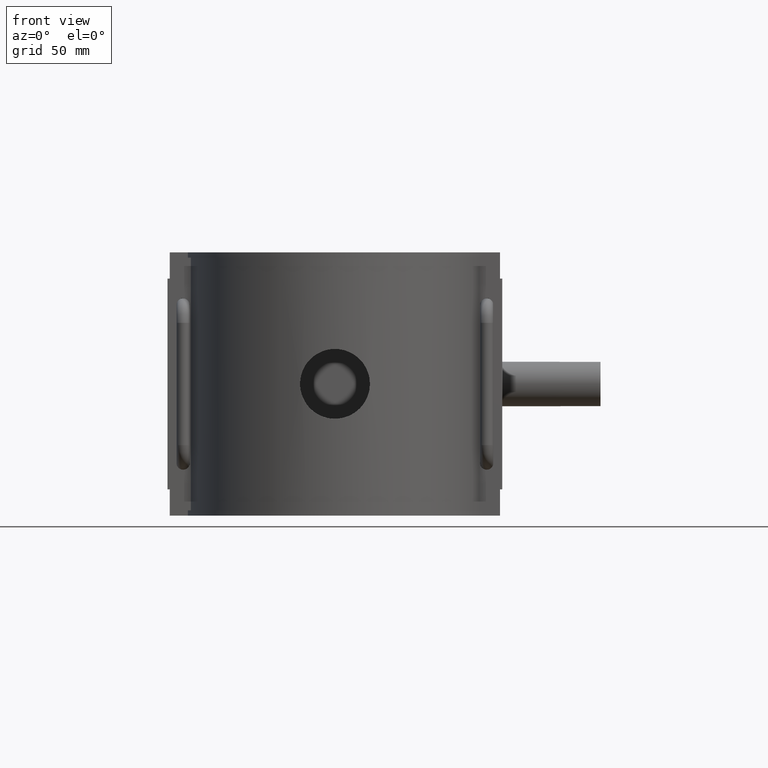
[diagram: clean part render]
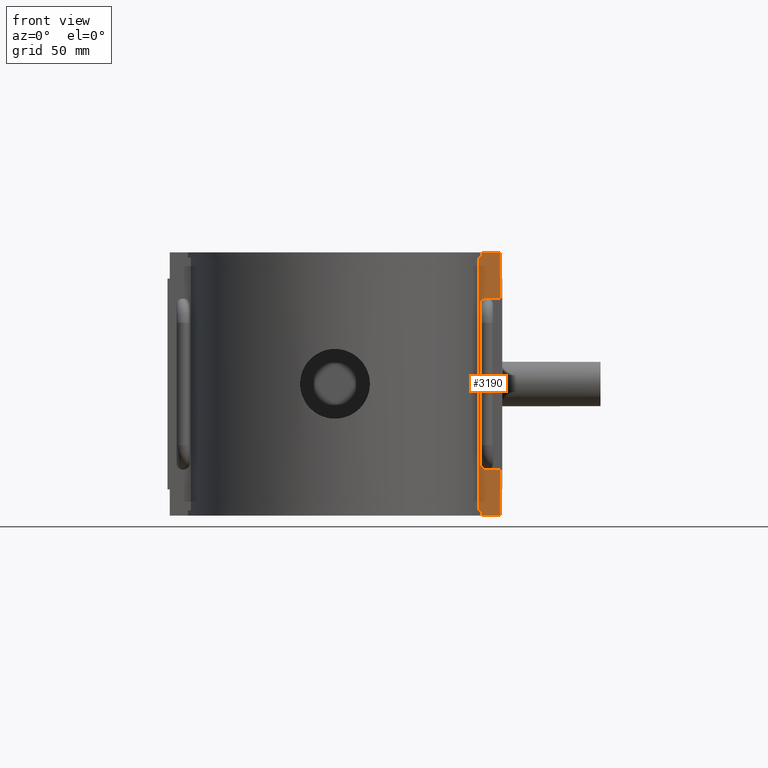
[diagram: same view with one face highlighted and labeled with its STEP entity id]
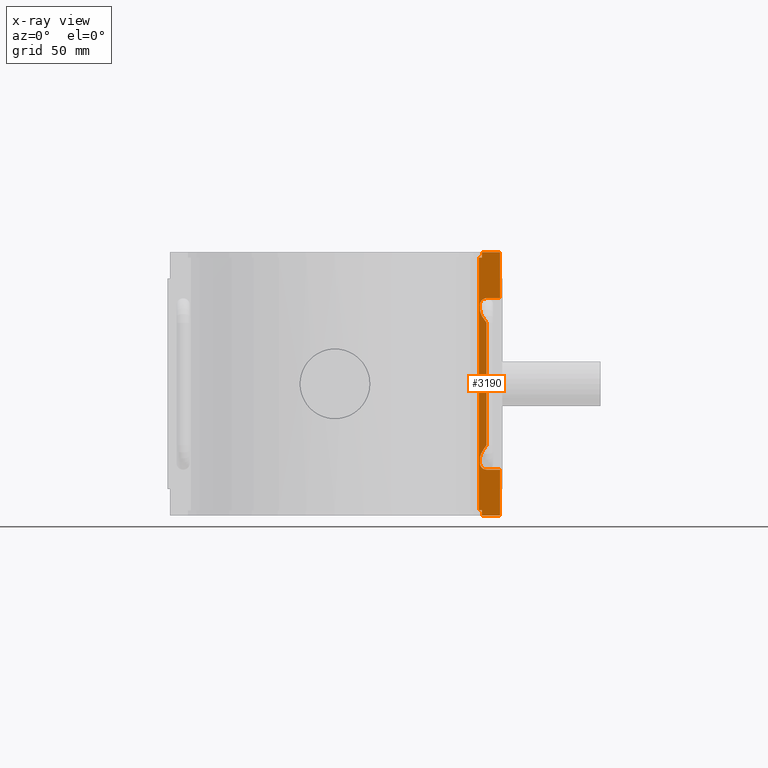
[diagram: x-ray of the same camera — body ghosted, the highlighted face saturated]
A machine part, front view. The second image highlights one B-rep face of the part: STEP entity #3190.
The next image is the same camera in x-ray: the body ghosted, the highlighted face saturated — about 0% of this face is hidden behind the body in this view.
In plain terms, the highlighted planar face has unit normal (0, -1, 0).
Its self-contained STEP definition (entity closure, byte-faithful):
#107=LINE('',#5409,#394);
#110=LINE('',#5417,#397);
#129=LINE('',#5497,#416);
#130=LINE('',#5501,#417);
#143=LINE('',#5662,#430);
#144=LINE('',#5664,#431);
#145=LINE('',#5666,#432);
#146=LINE('',#5683,#433);
#147=LINE('',#5700,#434);
#148=LINE('',#5702,#435);
#149=LINE('',#5703,#436);
#150=LINE('',#5704,#437);
#394=VECTOR('',#3880,2.36);
#397=VECTOR('',#3887,1.34901356519471);
#416=VECTOR('',#3932,2.36);
#417=VECTOR('',#3937,1.34901356519471);
#430=VECTOR('',#3964,8.09916616612502);
#431=VECTOR('',#3965,20.6);
#432=VECTOR('',#3966,6.02433467297777);
#433=VECTOR('',#3969,54.8);
#434=VECTOR('',#3972,6.02433467297777);
#435=VECTOR('',#3973,20.6);
#436=VECTOR('',#3974,8.09916616612502);
#437=VECTOR('',#3975,113.28);
#649=PLANE('',#3437);
#788=CIRCLE('',#3438,3.);
#789=CIRCLE('',#3439,3.);
#962=FACE_OUTER_BOUND('',#1166,.T.);
#1166=EDGE_LOOP('',(#2469,#2470,#2471,#2472,#2473,#2474,#2475,#2476,#2477,
#2478,#2479,#2480,#2481,#2482,#2483,#2484));
#1351=B_SPLINE_CURVE_WITH_KNOTS('',3,(#5670,#5671,#5672,#5673,#5674,#5675,
#5676,#5677,#5678,#5679,#5680,#5681),.UNSPECIFIED.,.F.,.F.,(4,2,2,2,2,4),
(1.5541826746921,1.64143836729109,1.76844964601288,1.89546092473467,2.1009420105833,
2.30642309643193),.UNSPECIFIED.);
#1352=B_SPLINE_CURVE_WITH_KNOTS('',3,(#5685,#5686,#5687,#5688,#5689,#5690,
#5691,#5692,#5693,#5694,#5695,#5696),.UNSPECIFIED.,.F.,.F.,(4,2,2,2,2,4),
(0.,0.205481085848629,0.410962171697258,0.537973450419048,0.664984729140837,
0.752240421739826),.UNSPECIFIED.);
#1469=VERTEX_POINT('',#5406);
#1470=VERTEX_POINT('',#5408);
#1473=VERTEX_POINT('',#5416);
#1496=VERTEX_POINT('',#5493);
#1497=VERTEX_POINT('',#5495);
#1498=VERTEX_POINT('',#5499);
#1518=VERTEX_POINT('',#5661);
#1519=VERTEX_POINT('',#5663);
#1520=VERTEX_POINT('',#5665);
#1521=VERTEX_POINT('',#5667);
#1522=VERTEX_POINT('',#5669);
#1523=VERTEX_POINT('',#5682);
#1524=VERTEX_POINT('',#5684);
#1525=VERTEX_POINT('',#5697);
#1526=VERTEX_POINT('',#5699);
#1527=VERTEX_POINT('',#5701);
#1819=EDGE_CURVE('',#1470,#1469,#107,.T.);
#1823=EDGE_CURVE('',#1473,#1470,#110,.T.);
#1852=EDGE_CURVE('',#1496,#1497,#129,.T.);
#1854=EDGE_CURVE('',#1497,#1498,#130,.T.);
#1877=EDGE_CURVE('',#1518,#1469,#143,.T.);
#1878=EDGE_CURVE('',#1518,#1519,#144,.T.);
#1879=EDGE_CURVE('',#1519,#1520,#145,.T.);
#1880=EDGE_CURVE('',#1520,#1521,#788,.T.);
#1881=EDGE_CURVE('',#1521,#1522,#1351,.T.);
#1882=EDGE_CURVE('',#1523,#1522,#146,.T.);
#1883=EDGE_CURVE('',#1523,#1524,#1352,.T.);
#1884=EDGE_CURVE('',#1524,#1525,#789,.T.);
#1885=EDGE_CURVE('',#1525,#1526,#147,.T.);
#1886=EDGE_CURVE('',#1526,#1527,#148,.T.);
#1887=EDGE_CURVE('',#1496,#1527,#149,.T.);
#1888=EDGE_CURVE('',#1473,#1498,#150,.T.);
#2469=ORIENTED_EDGE('',*,*,#1819,.T.);
#2470=ORIENTED_EDGE('',*,*,#1877,.F.);
#2471=ORIENTED_EDGE('',*,*,#1878,.T.);
#2472=ORIENTED_EDGE('',*,*,#1879,.T.);
#2473=ORIENTED_EDGE('',*,*,#1880,.T.);
#2474=ORIENTED_EDGE('',*,*,#1881,.T.);
#2475=ORIENTED_EDGE('',*,*,#1882,.F.);
#2476=ORIENTED_EDGE('',*,*,#1883,.T.);
#2477=ORIENTED_EDGE('',*,*,#1884,.T.);
#2478=ORIENTED_EDGE('',*,*,#1885,.T.);
#2479=ORIENTED_EDGE('',*,*,#1886,.T.);
#2480=ORIENTED_EDGE('',*,*,#1887,.F.);
#2481=ORIENTED_EDGE('',*,*,#1852,.T.);
#2482=ORIENTED_EDGE('',*,*,#1854,.T.);
#2483=ORIENTED_EDGE('',*,*,#1888,.F.);
#2484=ORIENTED_EDGE('',*,*,#1823,.T.);
#3190=ADVANCED_FACE('',(#962),#649,.T.);
#3437=AXIS2_PLACEMENT_3D('',#5660,#3962,#3963);
#3438=AXIS2_PLACEMENT_3D('',#5668,#3967,#3968);
#3439=AXIS2_PLACEMENT_3D('',#5698,#3970,#3971);
#3880=DIRECTION('',(0.,0.,-1.));
#3887=DIRECTION('',(1.,0.,0.));
#3932=DIRECTION('',(0.,0.,-1.));
#3937=DIRECTION('',(-1.,0.,0.));
#3962=DIRECTION('center_axis',(0.,-1.,0.));
#3963=DIRECTION('ref_axis',(1.,0.,0.));
#3964=DIRECTION('',(-1.,0.,0.));
#3965=DIRECTION('',(0.,0.,1.));
#3966=DIRECTION('',(-1.,0.,0.));
#3967=DIRECTION('center_axis',(0.,1.,0.));
#3968=DIRECTION('ref_axis',(1.,0.,0.));
#3969=DIRECTION('',(0.,1.62076353959877E-16,-1.));
#3970=DIRECTION('center_axis',(0.,1.,0.));
#3971=DIRECTION('ref_axis',(1.,0.,0.));
#3972=DIRECTION('',(1.,0.,7.37158929503087E-16));
#3973=DIRECTION('',(0.,0.,1.));
#3974=DIRECTION('',(1.,0.,0.));
#3975=DIRECTION('',(0.,0.,1.));
#5406=CARTESIAN_POINT('',(65.900833833875,-13.75,-59.));
#5408=CARTESIAN_POINT('',(65.900833833875,-13.75,-56.64));
#5409=CARTESIAN_POINT('',(65.900833833875,-13.75,-59.));
#5416=CARTESIAN_POINT('',(64.5518202686803,-13.75,-56.64));
#5417=CARTESIAN_POINT('',(32.2759101343401,-13.75,-56.64));
#5493=CARTESIAN_POINT('',(65.900833833875,-13.75,59.));
#5495=CARTESIAN_POINT('',(65.900833833875,-13.75,56.64));
#5497=CARTESIAN_POINT('',(65.900833833875,-13.75,59.));
#5499=CARTESIAN_POINT('',(64.5518202686803,-13.75,56.64));
#5501=CARTESIAN_POINT('',(32.2759101343401,-13.75,56.64));
#5660=CARTESIAN_POINT('Origin',(64.5518202686803,-13.75,0.));
#5661=CARTESIAN_POINT('',(74.,-13.75,-59.));
#5662=CARTESIAN_POINT('',(64.5518202686803,-13.75,-59.));
#5663=CARTESIAN_POINT('',(74.,-13.75,-38.4));
#5664=CARTESIAN_POINT('',(74.,-13.75,0.));
#5665=CARTESIAN_POINT('',(67.9756653270222,-13.75,-38.4));
#5666=CARTESIAN_POINT('',(69.2759101343401,-13.75,-38.4));
#5667=CARTESIAN_POINT('',(65.092907556629,-13.75,-34.5695136140564));
#5668=CARTESIAN_POINT('Origin',(67.9756653270222,-13.75,-35.4));
#5669=CARTESIAN_POINT('',(68.,-13.75,-27.4));
#5670=CARTESIAN_POINT('Ctrl Pts',(65.092907556629,-13.75,-34.5695136140564));
#5671=CARTESIAN_POINT('Ctrl Pts',(65.0281744318221,-13.75,-34.259817704623));
#5672=CARTESIAN_POINT('Ctrl Pts',(65.,-13.75,-33.9358503070612));
#5673=CARTESIAN_POINT('Ctrl Pts',(65.,-13.75,-33.2216270693252));
#5674=CARTESIAN_POINT('Ctrl Pts',(65.0580680938667,-13.75,-32.7627013613539));
#5675=CARTESIAN_POINT('Ctrl Pts',(65.2771836493012,-13.75,-31.867336720585));
#5676=CARTESIAN_POINT('Ctrl Pts',(65.4370980571853,-13.75,-31.4306208843288));
#5677=CARTESIAN_POINT('Ctrl Pts',(65.8891687969839,-13.75,-30.41870270221));
#5678=CARTESIAN_POINT('Ctrl Pts',(66.270333637417,-13.75,-29.7738388291261));
#5679=CARTESIAN_POINT('Ctrl Pts',(67.1179526808833,-13.75,-28.5365468681762));
#5680=CARTESIAN_POINT('Ctrl Pts',(67.5805634898982,-13.75,-27.9414902061386));
#5681=CARTESIAN_POINT('Ctrl Pts',(68.,-13.75,-27.4));
#5682=CARTESIAN_POINT('',(68.,-13.75,27.4));
#5683=CARTESIAN_POINT('',(68.,-13.75,27.4));
#5684=CARTESIAN_POINT('',(65.092907556629,-13.75,34.5695136140564));
#5685=CARTESIAN_POINT('Ctrl Pts',(68.,-13.75,27.4));
#5686=CARTESIAN_POINT('Ctrl Pts',(67.5805634898982,-13.75,27.9414902061386));
#5687=CARTESIAN_POINT('Ctrl Pts',(67.1179526808833,-13.75,28.5365468681762));
#5688=CARTESIAN_POINT('Ctrl Pts',(66.270333637417,-13.75,29.7738388291261));
#5689=CARTESIAN_POINT('Ctrl Pts',(65.8891687969839,-13.75,30.41870270221));
#5690=CARTESIAN_POINT('Ctrl Pts',(65.4370980571853,-13.75,31.4306208843288));
#5691=CARTESIAN_POINT('Ctrl Pts',(65.2771836493012,-13.75,31.867336720585));
#5692=CARTESIAN_POINT('Ctrl Pts',(65.0580680938667,-13.75,32.7627013613539));
#5693=CARTESIAN_POINT('Ctrl Pts',(65.,-13.75,33.2216270693252));
#5694=CARTESIAN_POINT('Ctrl Pts',(65.,-13.75,33.9358503070612));
#5695=CARTESIAN_POINT('Ctrl Pts',(65.0281744318221,-13.75,34.259817704623));
#5696=CARTESIAN_POINT('Ctrl Pts',(65.092907556629,-13.75,34.5695136140564));
#5697=CARTESIAN_POINT('',(67.9756653270222,-13.75,38.4));
#5698=CARTESIAN_POINT('Origin',(67.9756653270222,-13.75,35.4));
#5699=CARTESIAN_POINT('',(74.,-13.75,38.4));
#5700=CARTESIAN_POINT('',(66.2637427978512,-13.75,38.4));
#5701=CARTESIAN_POINT('',(74.,-13.75,59.));
#5702=CARTESIAN_POINT('',(74.,-13.75,0.));
#5703=CARTESIAN_POINT('',(64.5518202686803,-13.75,59.));
#5704=CARTESIAN_POINT('',(64.5518202686803,-13.75,0.));